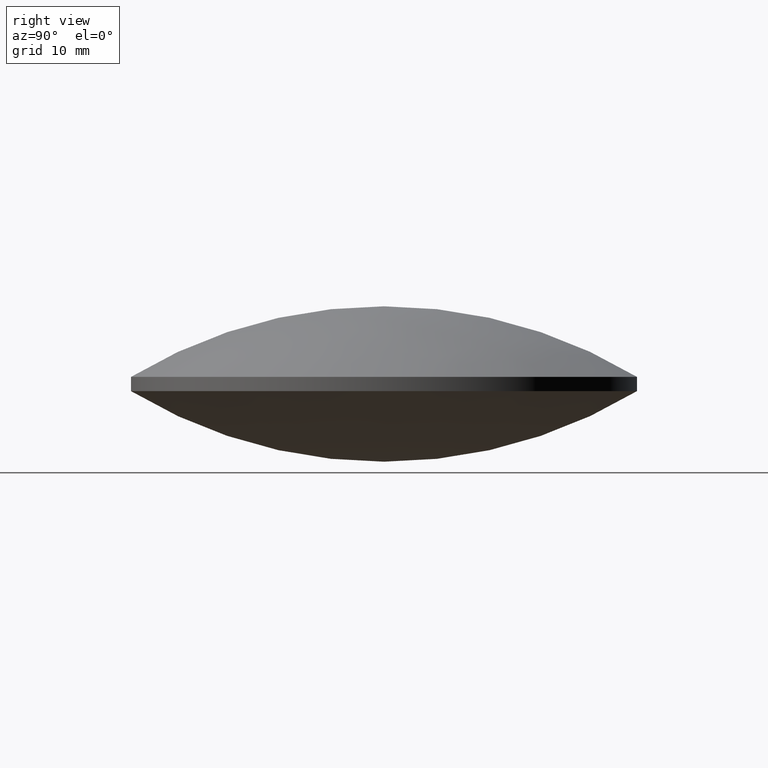
[diagram: clean part render]
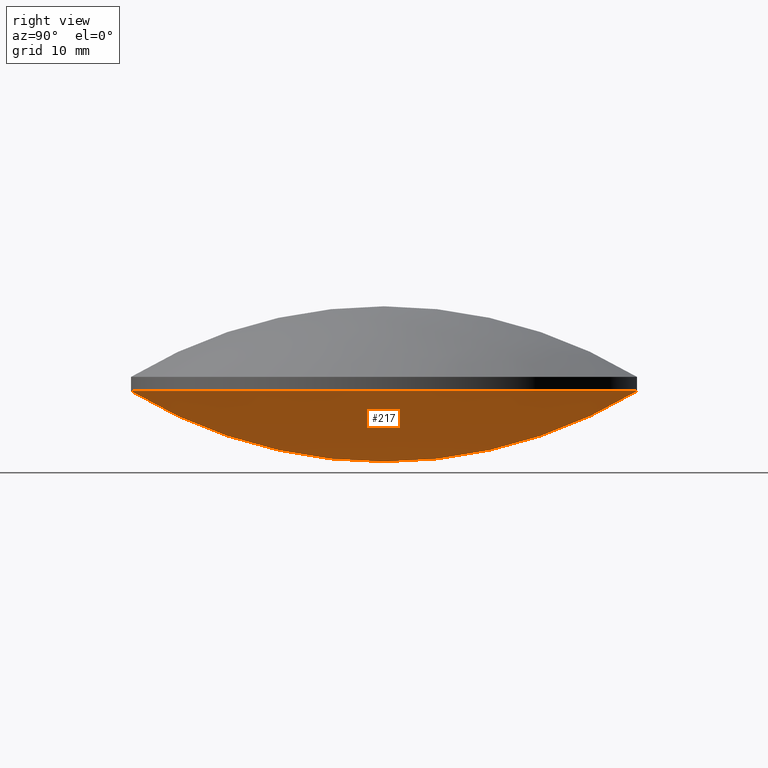
[diagram: same view with one face highlighted and labeled with its STEP entity id]
A machine part, right view. The second image highlights one B-rep face of the part: STEP entity #217.
In plain terms, the highlighted face is a freeform B-spline surface patch.
Its self-contained STEP definition (entity closure, byte-faithful):
#7 = DIRECTION ( 'NONE',  ( 0.0000000000000000000, -1.000000000000000000, -5.657475665639810500E-016 ) ) ;
#9 = ORIENTED_EDGE ( 'NONE', *, *, #82, .T. ) ;
#10 = AXIS2_PLACEMENT_3D ( 'NONE', #141, #162, #7 ) ;
#11 = CIRCLE ( 'NONE', #10, 49.06000000000000900 ) ;
#13 = DIRECTION ( 'NONE',  ( 1.797079892071900000E-031, 9.344115438189380100E-016, -1.000000000000000000 ) ) ;
#26 = CARTESIAN_POINT ( 'NONE',  ( 15.20625868226548100, -25.67355596179356400, 9.354131741978021000 ) ) ;
#29 = CARTESIAN_POINT ( 'NONE',  ( 7.748170942791468000, -25.67355596179356400, 7.253874560339198800 ) ) ;
#31 = VERTEX_POINT ( 'NONE', #117 ) ;
#40 = EDGE_CURVE ( 'NONE', #140, #31, #76, .T. ) ;
#44 = CARTESIAN_POINT ( 'NONE',  ( 27.00087449267520900, 9.493655584627687100, 4.921299682598301800 ) ) ;
#65 = CARTESIAN_POINT ( 'NONE',  ( -4.851826772789836000E-016, -9.493655584627635600, -2.682362615931988400 ) ) ;
#74 = CARTESIAN_POINT ( 'NONE',  ( 9.992007221626412800E-016, 4.884981308350691100E-015, 7.087108748622040500 ) ) ;
#76 = CIRCLE ( 'NONE', #90, 25.39999999999999900 ) ;
#77 = CARTESIAN_POINT ( 'NONE',  ( -4.851826772789839900E-016, 9.493655584627687100, -2.682362615931980900 ) ) ;
#79 = CARTESIAN_POINT ( 'NONE',  ( 21.81581761930886300, 25.67355596179360700, 13.39738335626920200 ) ) ;
#82 = EDGE_CURVE ( 'NONE', #31, #140, #11, .T. ) ;
#90 = AXIS2_PLACEMENT_3D ( 'NONE', #74, #13, #169 ) ;
#103 = CARTESIAN_POINT ( 'NONE',  ( 9.589711228101712900, -9.493655584627637400, -2.682362615931988900 ) ) ;
#105 = CARTESIAN_POINT ( 'NONE',  ( 21.81581761930886300, -25.67355596179357100, 13.39738335626917400 ) ) ;
#117 = CARTESIAN_POINT ( 'NONE',  ( 9.992007221626412800E-016, -25.39999999999999500, 7.087108748622016600 ) ) ;
#124 = CARTESIAN_POINT ( 'NONE',  ( 4.109803591996917800E-015, 25.40000000000000200, 7.087108748622063600 ) ) ;
#140 = VERTEX_POINT ( 'NONE', #124 ) ;
#141 = CARTESIAN_POINT ( 'NONE',  ( 3.552713678800500100E-015, -7.105427357601000300E-015, 49.06000000000000900 ) ) ;
#161 = CARTESIAN_POINT ( 'NONE',  ( 18.82039396128809400, -9.493655584627637400, -0.08292850104566795700 ) ) ;
#162 = DIRECTION ( 'NONE',  ( 1.000000000000000000, 1.772852460197800000E-031, -2.993131588200479900E-016 ) ) ;
#168 =( BOUNDED_SURFACE ( )  B_SPLINE_SURFACE ( 3, 3, ( 
 ( #244, #29, #26, #105 ),
 ( #65, #103, #161, #206 ),
 ( #77, #180, #239, #44 ),
 ( #202, #203, #205, #79 ) ),
 .UNSPECIFIED., .F., .F., .F. ) 
 B_SPLINE_SURFACE_WITH_KNOTS ( ( 4, 4 ),
 ( 4, 4 ),
 ( 0.0000000000000000000, 1.000000000000000000 ),
 ( 0.0000000000000000000, 1.000000000000000000 ),
 .UNSPECIFIED. ) 
 GEOMETRIC_REPRESENTATION_ITEM ( )  RATIONAL_B_SPLINE_SURFACE ( (
 ( 1.000000000000000000, 0.9750407155908767900, 0.9750407155908767900, 1.000000000000000000),
 ( 0.9014285288715965200, 0.8789295178449928500, 0.8789295178449928500, 0.9014285288715965200),
 ( 0.9014285288715965200, 0.8789295178449928500, 0.8789295178449928500, 0.9014285288715965200),
 ( 1.000000000000000000, 0.9750407155908767900, 0.9750407155908767900, 1.000000000000000000) ) ) 
 REPRESENTATION_ITEM ( '' )  SURFACE ( )  );
#169 = DIRECTION ( 'NONE',  ( 0.0000000000000000000, -1.000000000000000000, -9.219986978616888100E-016 ) ) ;
#180 = CARTESIAN_POINT ( 'NONE',  ( 9.589711228101712900, 9.493655584627687100, -2.682362615931981800 ) ) ;
#182 = EDGE_LOOP ( 'NONE', ( #189, #9 ) ) ;
#189 = ORIENTED_EDGE ( 'NONE', *, *, #40, .T. ) ;
#202 = CARTESIAN_POINT ( 'NONE',  ( 2.902263658877685300E-016, 25.67355596179361000, 7.253874560339227200 ) ) ;
#203 = CARTESIAN_POINT ( 'NONE',  ( 7.748170942791468000, 25.67355596179361000, 7.253874560339226300 ) ) ;
#205 = CARTESIAN_POINT ( 'NONE',  ( 15.20625868226548100, 25.67355596179361000, 9.354131741978045900 ) ) ;
#206 = CARTESIAN_POINT ( 'NONE',  ( 27.00087449267520500, -9.493655584627639100, 4.921299682598292900 ) ) ;
#216 = FACE_OUTER_BOUND ( 'NONE', #182, .T. ) ;
#217 = ADVANCED_FACE ( 'NONE', ( #216 ), #168, .T. ) ;
#239 = CARTESIAN_POINT ( 'NONE',  ( 18.82039396128809700, 9.493655584627687100, -0.08292850104566100400 ) ) ;
#244 = CARTESIAN_POINT ( 'NONE',  ( 2.902263658877685300E-016, -25.67355596179356800, 7.253874560339198800 ) ) ;